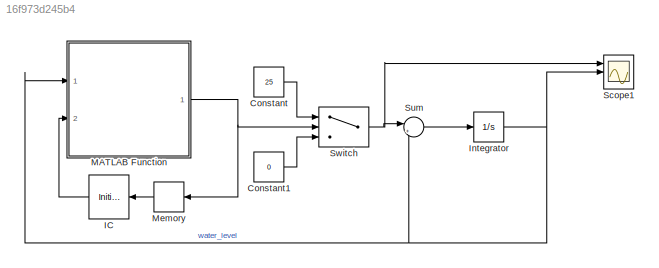
MODEL slx_16f973d245b4
KIND model
CONFIG AbsTol = auto
CONFIG EnableMultiTasking = off
CONFIG FixedStep = auto
CONFIG MaxStep = auto
CONFIG MinStep = auto
CONFIG RelTol = 1e-3
CONFIG SampleTimeConstraint = Unconstrained
CONFIG SolverName = VariableStepAuto
CONFIG StartTime = 0.0
CONFIG StopTime = 10.0
BLOCK [Constant] Constant
  Value = 25
BLOCK [Constant] Constant1
  Value = 0
BLOCK [InitialCondition] IC
  NameLocation = top
BLOCK [Integrator] Integrator
  Ports = [1, 1]
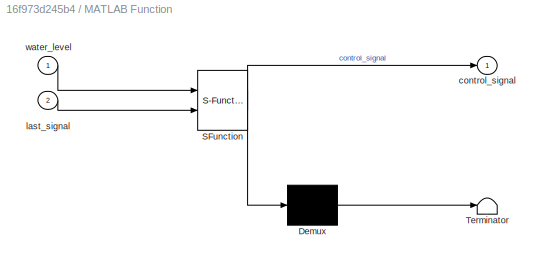
BLOCK [SubSystem] MATLAB Function
  ErrorFcn = Stateflow.Translate.translate
  PermitHierarchicalResolution = ExplicitOnly
  Ports = [2, 1]
  RequestExecContextInheritance = off
  SFBlockType = MATLAB Function
  TreatAsAtomicUnit = on
BLOCK [Demux] MATLAB Function/ Demux 
  Outputs = 1
  Ports = [1, 1]
BLOCK [S-Function] MATLAB Function/ SFunction 
  EnableBusSupport = on
  FunctionName = sf_sfun
  PortCounts = [2 2]
  Ports = [2, 2]
  SFcnIsStateOwnerBlock = off
  SFunctionDeploymentMode = off
  Tag = Stateflow S-Function 2
BLOCK [Terminator] MATLAB Function/ Terminator 
BLOCK [Outport] MATLAB Function/control_signal
BLOCK [Inport] MATLAB Function/last_signal
  Port = 2
BLOCK [Inport] MATLAB Function/water_level
BLOCK [Memory] Memory
  NameLocation = top
BLOCK [Scope] Scope1
  Floating = off
  NumInputPorts = 3
  Ports = [3]
  ScopeSpecificationString = Simulink.scopes.TimeScopeBlockCfg('CurrentConfiguration', extmgr.ConfigurationSet(extmgr.Configuration('Core','General UI',true),extmgr.Configuration('Core','Source UI',true),extmgr.Configuration('Sources','WiredSimulink',true,'DataLoggingVariableName','ScopeData1'),extmgr.Configuration('Visuals','Time Domain',true,'SerializedDisplays',{struct('MinYLimReal','-3.125','MaxYLimReal','28.125','YLabelR...<+2107ch>
BLOCK [Sum] Sum
  Inputs = |+-
  Ports = [2, 1]
BLOCK [Switch] Switch
  Criteria = u2 > Threshold
  InputSameDT = off
  SaturateOnIntegerOverflow = off
LINE Constant1:1 -> Switch:3
LINE Constant:1 -> Switch:1
LINE IC:1 -> MATLAB Function:2
NET Integrator:1 -> MATLAB Function:1, Scope1:2, Sum:2
NET MATLAB Function:1 -> Memory:1, Switch:2
LINE Memory:1 -> IC:1
LINE Sum:1 -> Integrator:1
NET Switch:1 -> Scope1:1, Sum:1
note: NET lines group one-source signal fan-out (src -> all destinations, sorted); 1:1 wires keep LINE
CHART MATLAB Function states=1 transitions=1
  STATE_LABEL 'eML_blk_kernel()'
  STATE_LABEL 'SCRIPT:\nfunction control_signal  = fcn(water_level, last_signal)\n\nif water_level < 10\n    control_signal = 1;\n\nelseif water_level > 15\n    control_signal = 0;\n\nelse \n    control_signal = last_signal ;\nend \n\n% \n% if control_signal == 1\n%     control = 25;\n% else \n%     control = 0 ; \n% end\n% \n% flow = (control - water_level);\nend\n\n\n\n\n'
CHART  states=0 transitions=0
